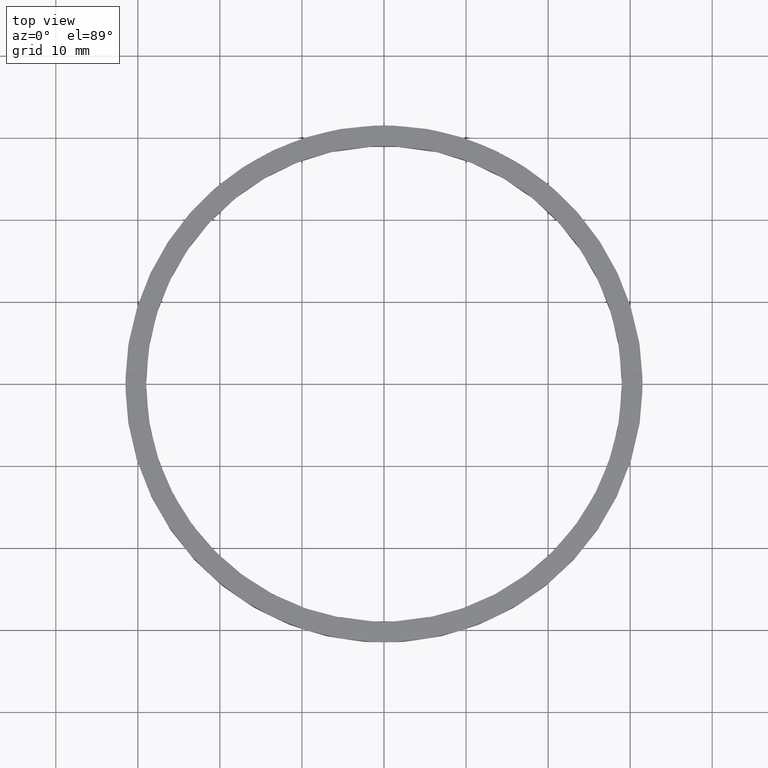
[diagram: clean part render]
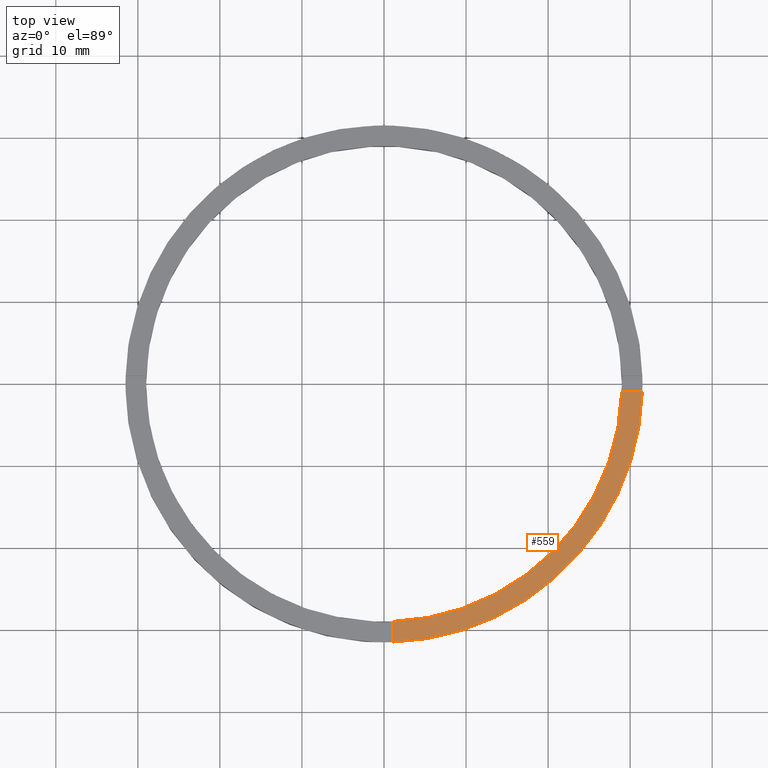
[diagram: same view with one face highlighted and labeled with its STEP entity id]
A machine part, top view. The second image highlights one B-rep face of the part: STEP entity #559.
In plain terms, the highlighted planar face has unit normal (0, 0, 1).
Its self-contained STEP definition (entity closure, byte-faithful):
#2 = ORIENTED_EDGE ( 'NONE', *, *, #105, .F. ) ;
#17 = CARTESIAN_POINT ( 'NONE',  ( 28.98275349237887255, -1.000000000000158540, 3.000000000000000000 ) ) ;
#68 = CARTESIAN_POINT ( 'NONE',  ( 0.9999999999998382405, -28.98275349237888321, 3.000000000000000000 ) ) ;
#90 = VECTOR ( 'NONE', #341, 1000.000000000000000 ) ;
#99 = LINE ( 'NONE', #243, #90 ) ;
#105 = EDGE_CURVE ( 'NONE', #166, #278, #99, .T. ) ;
#106 = VERTEX_POINT ( 'NONE', #68 ) ;
#124 = CARTESIAN_POINT ( 'NONE',  ( 0.000000000000000000, 0.000000000000000000, 3.000000000000000000 ) ) ;
#147 = VERTEX_POINT ( 'NONE', #199 ) ;
#150 = VECTOR ( 'NONE', #467, 1000.000000000000000 ) ;
#157 = CIRCLE ( 'NONE', #208, 29.00000000000000000 ) ;
#166 = VERTEX_POINT ( 'NONE', #17 ) ;
#190 = EDGE_LOOP ( 'NONE', ( #2, #207, #210, #360 ) ) ;
#199 = CARTESIAN_POINT ( 'NONE',  ( 0.9999999999998386846, -31.48412298286233479, 3.000000000000000000 ) ) ;
#207 = ORIENTED_EDGE ( 'NONE', *, *, #477, .F. ) ;
#208 = AXIS2_PLACEMENT_3D ( 'NONE', #775, #370, #373 ) ;
#210 = ORIENTED_EDGE ( 'NONE', *, *, #508, .F. ) ;
#217 = CARTESIAN_POINT ( 'NONE',  ( 31.48412298286232414, -1.000000000000158540, 3.000000000000000000 ) ) ;
#219 = DIRECTION ( 'NONE',  ( 0.000000000000000000, 0.000000000000000000, 1.000000000000000000 ) ) ;
#226 = DIRECTION ( 'NONE',  ( 0.000000000000000000, 0.000000000000000000, 1.000000000000000000 ) ) ;
#243 = CARTESIAN_POINT ( 'NONE',  ( 21.49999999999999645, -1.000000000000159206, 3.000000000000000000 ) ) ;
#278 = VERTEX_POINT ( 'NONE', #217 ) ;
#341 = DIRECTION ( 'NONE',  ( 1.000000000000000000, 6.505213034913022906E-17, 0.000000000000000000 ) ) ;
#350 = AXIS2_PLACEMENT_3D ( 'NONE', #615, #226, #519 ) ;
#359 = CARTESIAN_POINT ( 'NONE',  ( 0.9999999999998373523, -21.50000000000017764, 3.000000000000000000 ) ) ;
#360 = ORIENTED_EDGE ( 'NONE', *, *, #515, .T. ) ;
#370 = DIRECTION ( 'NONE',  ( 0.000000000000000000, 0.000000000000000000, 1.000000000000000000 ) ) ;
#373 = DIRECTION ( 'NONE',  ( 1.000000000000000000, 0.000000000000000000, 0.000000000000000000 ) ) ;
#384 = AXIS2_PLACEMENT_3D ( 'NONE', #124, #219, #611 ) ;
#392 = FACE_OUTER_BOUND ( 'NONE', #190, .T. ) ;
#410 = LINE ( 'NONE', #359, #150 ) ;
#413 = CIRCLE ( 'NONE', #350, 31.50000000000000000 ) ;
#467 = DIRECTION ( 'NONE',  ( -1.301042606982605074E-16, 1.000000000000000000, -0.000000000000000000 ) ) ;
#477 = EDGE_CURVE ( 'NONE', #106, #166, #157, .T. ) ;
#508 = EDGE_CURVE ( 'NONE', #147, #106, #410, .T. ) ;
#515 = EDGE_CURVE ( 'NONE', #147, #278, #413, .T. ) ;
#519 = DIRECTION ( 'NONE',  ( 1.000000000000000000, 0.000000000000000000, 0.000000000000000000 ) ) ;
#559 = ADVANCED_FACE ( 'NONE', ( #392 ), #573, .T. ) ;
#573 = PLANE ( 'NONE',  #384 ) ;
#611 = DIRECTION ( 'NONE',  ( 1.000000000000000000, 0.000000000000000000, -0.000000000000000000 ) ) ;
#615 = CARTESIAN_POINT ( 'NONE',  ( 0.000000000000000000, 0.000000000000000000, 3.000000000000000000 ) ) ;
#775 = CARTESIAN_POINT ( 'NONE',  ( 0.000000000000000000, 0.000000000000000000, 3.000000000000000000 ) ) ;